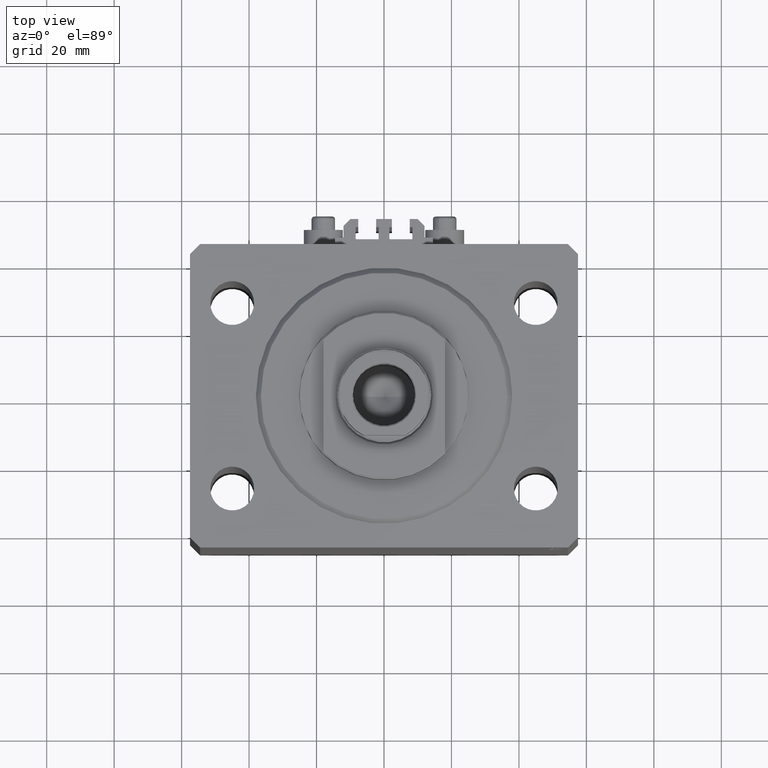
[diagram: clean part render]
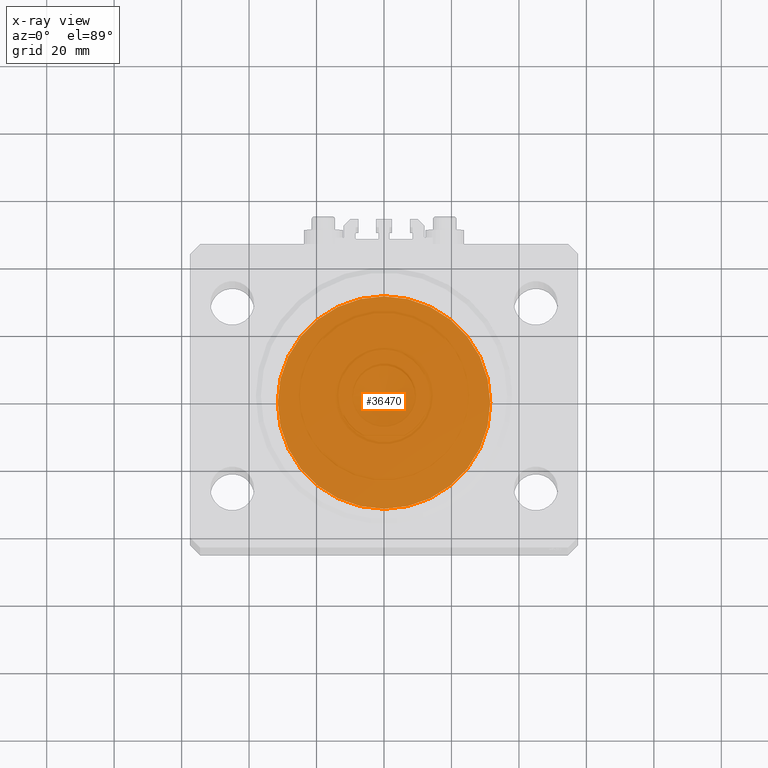
[diagram: x-ray — body ghosted, one internal face saturated and labeled with its STEP entity id]
A machine part, top view, then the same camera in x-ray: the body is ghosted and one INTERNAL B-rep face — a face not visible from any outside direction — is saturated and labeled: STEP entity #36470.
In plain terms, the highlighted planar face has unit normal (0, 0, 1).
Its self-contained STEP definition (entity closure, byte-faithful):
#5256 = VERTEX_POINT ( 'NONE', #21726 ) ;
#7297 = ORIENTED_EDGE ( 'NONE', *, *, #25246, .F. ) ;
#8688 = ORIENTED_EDGE ( 'NONE', *, *, #11859, .F. ) ;
#10508 = DIRECTION ( 'NONE',  ( 1.000000000000000000, 0.000000000000000000, -0.000000000000000000 ) ) ;
#10872 = AXIS2_PLACEMENT_3D ( 'NONE', #35489, #14201, #39084 ) ;
#11859 = EDGE_CURVE ( 'NONE', #27733, #5256, #13155, .T. ) ;
#13155 = CIRCLE ( 'NONE', #10872, 31.50000000000000000 ) ;
#14201 = DIRECTION ( 'NONE',  ( 0.000000000000000000, 0.000000000000000000, 1.000000000000000000 ) ) ;
#17926 = FACE_OUTER_BOUND ( 'NONE', #26526, .T. ) ;
#21726 = CARTESIAN_POINT ( 'NONE',  ( 31.50000000000000000, 3.857637417314162689E-15, 0.000000000000000000 ) ) ;
#23359 = AXIS2_PLACEMENT_3D ( 'NONE', #34902, #39212, #38738 ) ;
#25246 = EDGE_CURVE ( 'NONE', #5256, #27733, #37885, .T. ) ;
#25922 = CARTESIAN_POINT ( 'NONE',  ( -31.50000000000000000, 0.000000000000000000, 0.000000000000000000 ) ) ;
#26526 = EDGE_LOOP ( 'NONE', ( #8688, #7297 ) ) ;
#27733 = VERTEX_POINT ( 'NONE', #25922 ) ;
#28669 = PLANE ( 'NONE',  #31566 ) ;
#31566 = AXIS2_PLACEMENT_3D ( 'NONE', #32974, #40395, #10508 ) ;
#32974 = CARTESIAN_POINT ( 'NONE',  ( 0.000000000000000000, 0.000000000000000000, 0.000000000000000000 ) ) ;
#34902 = CARTESIAN_POINT ( 'NONE',  ( 0.000000000000000000, 0.000000000000000000, 0.000000000000000000 ) ) ;
#35489 = CARTESIAN_POINT ( 'NONE',  ( 0.000000000000000000, 0.000000000000000000, 0.000000000000000000 ) ) ;
#36470 = ADVANCED_FACE ( 'NONE', ( #17926 ), #28669, .F. ) ;
#37885 = CIRCLE ( 'NONE', #23359, 31.50000000000000000 ) ;
#38738 = DIRECTION ( 'NONE',  ( 1.000000000000000000, 0.000000000000000000, 0.000000000000000000 ) ) ;
#39084 = DIRECTION ( 'NONE',  ( 1.000000000000000000, 0.000000000000000000, 0.000000000000000000 ) ) ;
#39212 = DIRECTION ( 'NONE',  ( 0.000000000000000000, 0.000000000000000000, 1.000000000000000000 ) ) ;
#40395 = DIRECTION ( 'NONE',  ( 0.000000000000000000, 0.000000000000000000, 1.000000000000000000 ) ) ;